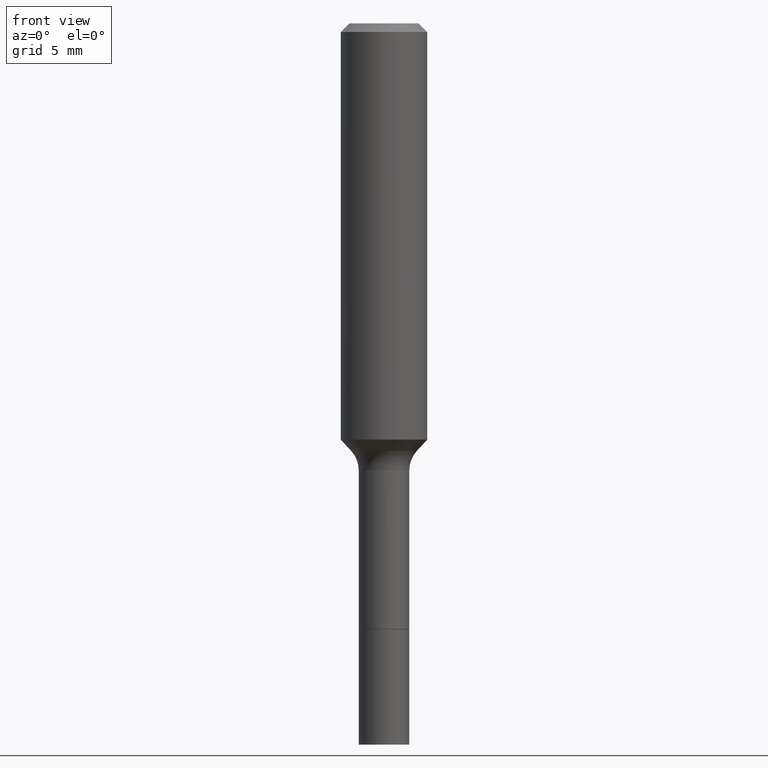
[diagram: clean part render]
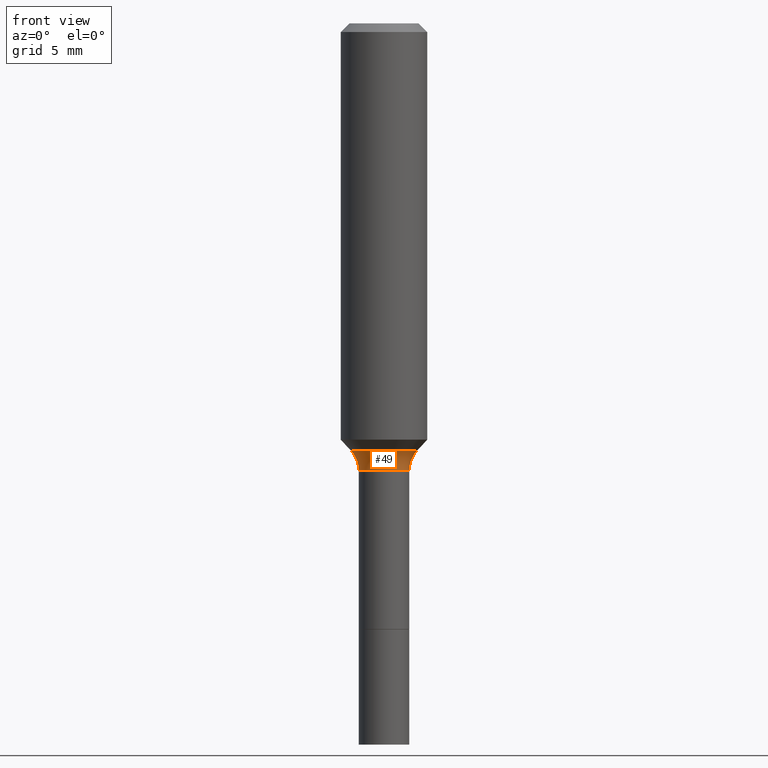
[diagram: same view with one face highlighted and labeled with its STEP entity id]
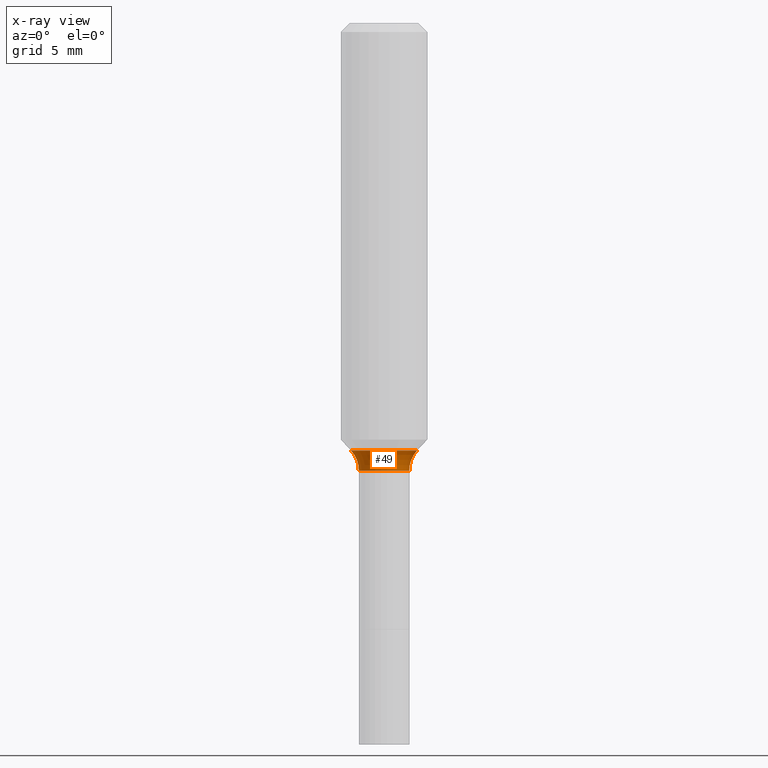
[diagram: x-ray of the same camera — body ghosted, the highlighted face saturated]
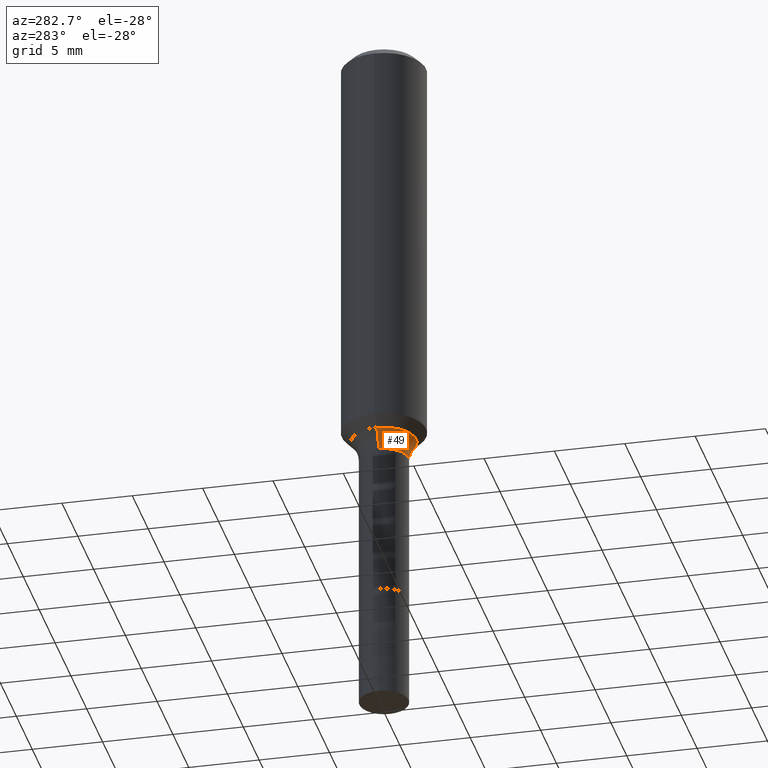
[diagram: same view with one face highlighted and labeled with its STEP entity id]
A machine part, front view. The second image highlights one B-rep face of the part: STEP entity #49.
The next image is the same camera in x-ray: the body ghosted, the highlighted face saturated — about 0% of this face is hidden behind the body in this view.
A second angle (auxiliary view) of the same face is appended — the face is thin or edge-on in the first view.
In plain terms, the highlighted toroidal blend (fillet) surface has major radius 3.7821 mm and minor (blend) radius 2.032 mm.
Its self-contained STEP definition (entity closure, byte-faithful):
#2 = AXIS2_PLACEMENT_3D ( 'NONE', #446, #323, #363 ) ;
#48 = DIRECTION ( 'NONE',  ( -2.445468806185136597E-29, 3.491481338843145583E-15, 1.000000000000000000 ) ) ;
#49 = ADVANCED_FACE ( 'NONE', ( #431 ), #138, .F. ) ;
#58 = CARTESIAN_POINT ( 'NONE',  ( 0.06889999999999996128, -4.742479102550642766E-15, -1.220499999999999918 ) ) ;
#62 = AXIS2_PLACEMENT_3D ( 'NONE', #313, #107, #393 ) ;
#66 = VERTEX_POINT ( 'NONE', #58 ) ;
#75 = DIRECTION ( 'NONE',  ( 7.105427357601001859E-15, 1.000000000000000000, -3.491481338843145583E-15 ) ) ;
#107 = DIRECTION ( 'NONE',  ( -2.445468806185136597E-29, 3.491481338843145583E-15, 1.000000000000000000 ) ) ;
#129 = CIRCLE ( 'NONE', #2, 0.08000000000000000167 ) ;
#132 = DIRECTION ( 'NONE',  ( 1.000000000000000000, -6.982962677686269866E-15, 0.000000000000000000 ) ) ;
#138 = TOROIDAL_SURFACE ( 'NONE', #466, 0.1488999999999999491, 0.08000000000000000167 ) ;
#173 = VERTEX_POINT ( 'NONE', #501 ) ;
#180 = CIRCLE ( 'NONE', #503, 0.08000000000000000167 ) ;
#204 = EDGE_CURVE ( 'NONE', #205, #505, #207, .T. ) ;
#205 = VERTEX_POINT ( 'NONE', #269 ) ;
#207 = CIRCLE ( 'NONE', #62, 0.09039170387046643884 ) ;
#240 = DIRECTION ( 'NONE',  ( -1.000000000000000000, 7.105427357601005014E-15, 0.000000000000000000 ) ) ;
#248 = EDGE_LOOP ( 'NONE', ( #312, #252, #447, #404 ) ) ;
#252 = ORIENTED_EDGE ( 'NONE', *, *, #305, .T. ) ;
#263 = EDGE_CURVE ( 'NONE', #505, #66, #129, .T. ) ;
#269 = CARTESIAN_POINT ( 'NONE',  ( -0.09039170387046635557, -3.428586524694291747E-15, -1.165940131195000173 ) ) ;
#282 = CARTESIAN_POINT ( 'NONE',  ( -0.1488999999999999491, -3.203354840511270410E-15, -1.220499999999999918 ) ) ;
#305 = EDGE_CURVE ( 'NONE', #205, #173, #180, .T. ) ;
#312 = ORIENTED_EDGE ( 'NONE', *, *, #204, .F. ) ;
#313 = CARTESIAN_POINT ( 'NONE',  ( 2.851270220716778580E-29, -4.070858210275671756E-15, -1.165940131195000173 ) ) ;
#323 = DIRECTION ( 'NONE',  ( -6.982962677686266711E-15, -1.000000000000000000, 3.491481338843145583E-15 ) ) ;
#343 = DIRECTION ( 'NONE',  ( 1.000000000000000000, -6.982962677686267499E-15, 4.883557194083113462E-29 ) ) ;
#344 = CARTESIAN_POINT ( 'NONE',  ( 0.09039170387046635557, -4.702060104775607440E-15, -1.165940131195000173 ) ) ;
#363 = DIRECTION ( 'NONE',  ( 1.000000000000000000, -6.982962677686259611E-15, 0.000000000000000000 ) ) ;
#385 = DIRECTION ( 'NONE',  ( -2.445468806185136597E-29, 3.491481338843145583E-15, 1.000000000000000000 ) ) ;
#393 = DIRECTION ( 'NONE',  ( 1.000000000000000000, -6.982962677686262766E-15, 0.000000000000000000 ) ) ;
#396 = CIRCLE ( 'NONE', #460, 0.06889999999999996128 ) ;
#404 = ORIENTED_EDGE ( 'NONE', *, *, #263, .F. ) ;
#431 = FACE_OUTER_BOUND ( 'NONE', #248, .T. ) ;
#435 = EDGE_CURVE ( 'NONE', #173, #66, #396, .T. ) ;
#446 = CARTESIAN_POINT ( 'NONE',  ( 0.1488999999999999491, -5.301116116765543630E-15, -1.220499999999999918 ) ) ;
#447 = ORIENTED_EDGE ( 'NONE', *, *, #435, .T. ) ;
#460 = AXIS2_PLACEMENT_3D ( 'NONE', #516, #48, #132 ) ;
#461 = CARTESIAN_POINT ( 'NONE',  ( 2.984694677948959472E-29, -4.261352974058059028E-15, -1.220499999999999918 ) ) ;
#466 = AXIS2_PLACEMENT_3D ( 'NONE', #461, #385, #343 ) ;
#501 = CARTESIAN_POINT ( 'NONE',  ( -0.06889999999999996128, -4.526821868644180150E-15, -1.220499999999999918 ) ) ;
#503 = AXIS2_PLACEMENT_3D ( 'NONE', #282, #75, #240 ) ;
#505 = VERTEX_POINT ( 'NONE', #344 ) ;
#516 = CARTESIAN_POINT ( 'NONE',  ( 2.984694677948959472E-29, -4.261352974058059028E-15, -1.220499999999999918 ) ) ;